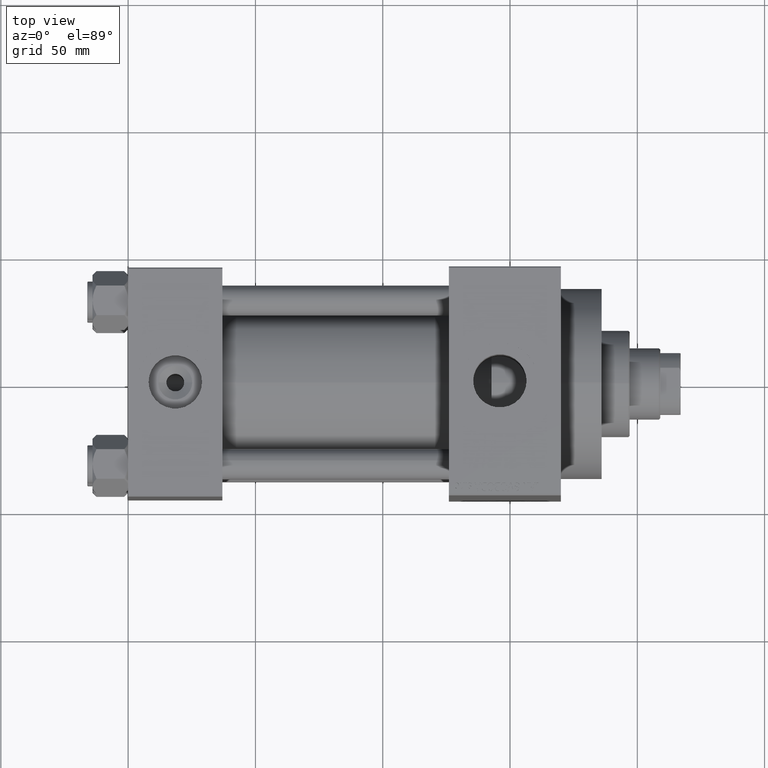
[diagram: clean part render]
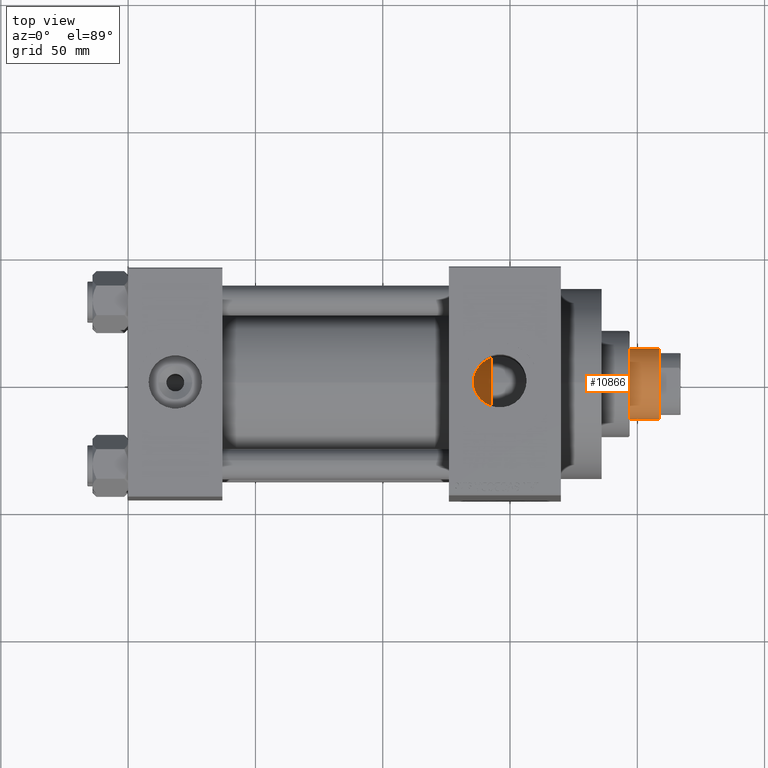
[diagram: same view with one face highlighted and labeled with its STEP entity id]
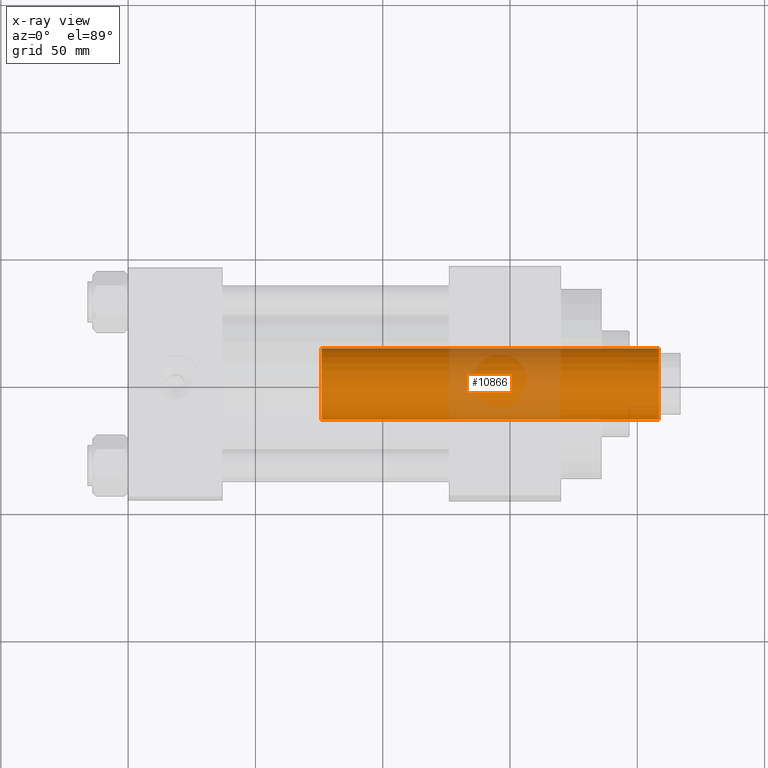
[diagram: x-ray of the same camera — body ghosted, the highlighted face saturated]
A machine part, top view. The second image highlights one B-rep face of the part: STEP entity #10866.
The next image is the same camera in x-ray: the body ghosted, the highlighted face saturated — about 25% of this face is hidden behind the body in this view.
In plain terms, the highlighted cylindrical surface (edge-blend (fillet) strip) has radius 14 mm, axis along (-1, 0, 0).
Its self-contained STEP definition (entity closure, byte-faithful):
#1105 = CARTESIAN_POINT ( 'NONE',  ( -14.00000000000000178, 0.000000000000000000, 172.0000000000000000 ) ) ;
#2178 = CARTESIAN_POINT ( 'NONE',  ( 14.00000000000000178, 1.714505518806294835E-15, 171.5000000000000284 ) ) ;
#3084 = CARTESIAN_POINT ( 'NONE',  ( -14.00000000000000178, 0.000000000000000000, 171.5000000000000284 ) ) ;
#3432 = CARTESIAN_POINT ( 'NONE',  ( 0.000000000000000000, 0.000000000000000000, 171.5000000000000284 ) ) ;
#7173 = LINE ( 'NONE', #14621, #11016 ) ;
#10866 = ADVANCED_FACE ( 'NONE', ( #24953 ), #18439, .T. ) ;
#11016 = VECTOR ( 'NONE', #36911, 1000.000000000000000 ) ;
#13331 = VERTEX_POINT ( 'NONE', #2178 ) ;
#14608 = DIRECTION ( 'NONE',  ( -1.000000000000000000, 0.000000000000000000, 0.000000000000000000 ) ) ;
#14621 = CARTESIAN_POINT ( 'NONE',  ( 14.00000000000000178, 1.714505518806294835E-15, 172.0000000000000000 ) ) ;
#14741 = VERTEX_POINT ( 'NONE', #18299 ) ;
#14892 = AXIS2_PLACEMENT_3D ( 'NONE', #21817, #39578, #14608 ) ;
#15055 = CIRCLE ( 'NONE', #42629, 14.00000000000000178 ) ;
#15466 = EDGE_CURVE ( 'NONE', #14741, #42614, #15055, .T. ) ;
#18299 = CARTESIAN_POINT ( 'NONE',  ( -14.00000000000000178, 0.000000000000000000, 39.00000000000000000 ) ) ;
#18439 = CYLINDRICAL_SURFACE ( 'NONE', #14892, 14.00000000000000178 ) ;
#19104 = DIRECTION ( 'NONE',  ( -0.000000000000000000, -0.000000000000000000, -1.000000000000000000 ) ) ;
#19232 = ORIENTED_EDGE ( 'NONE', *, *, #44851, .T. ) ;
#21817 = CARTESIAN_POINT ( 'NONE',  ( 0.000000000000000000, 0.000000000000000000, 172.0000000000000000 ) ) ;
#23608 = EDGE_CURVE ( 'NONE', #13331, #42614, #7173, .T. ) ;
#24953 = FACE_OUTER_BOUND ( 'NONE', #26852, .T. ) ;
#25805 = VERTEX_POINT ( 'NONE', #3084 ) ;
#26852 = EDGE_LOOP ( 'NONE', ( #33779, #19232, #33630, #32842 ) ) ;
#28317 = AXIS2_PLACEMENT_3D ( 'NONE', #3432, #28634, #43724 ) ;
#28343 = VECTOR ( 'NONE', #19104, 1000.000000000000000 ) ;
#28634 = DIRECTION ( 'NONE',  ( 0.000000000000000000, 0.000000000000000000, -1.000000000000000000 ) ) ;
#30576 = CIRCLE ( 'NONE', #28317, 14.00000000000000178 ) ;
#31029 = DIRECTION ( 'NONE',  ( 0.000000000000000000, 0.000000000000000000, 1.000000000000000000 ) ) ;
#31512 = DIRECTION ( 'NONE',  ( 1.000000000000000000, 0.000000000000000000, 0.000000000000000000 ) ) ;
#32842 = ORIENTED_EDGE ( 'NONE', *, *, #15466, .T. ) ;
#33630 = ORIENTED_EDGE ( 'NONE', *, *, #45571, .T. ) ;
#33779 = ORIENTED_EDGE ( 'NONE', *, *, #23608, .F. ) ;
#35891 = CARTESIAN_POINT ( 'NONE',  ( 14.00000000000000178, 1.714505518806294835E-15, 39.00000000000000000 ) ) ;
#36631 = LINE ( 'NONE', #1105, #28343 ) ;
#36911 = DIRECTION ( 'NONE',  ( -0.000000000000000000, -0.000000000000000000, -1.000000000000000000 ) ) ;
#39578 = DIRECTION ( 'NONE',  ( -0.000000000000000000, -0.000000000000000000, -1.000000000000000000 ) ) ;
#42614 = VERTEX_POINT ( 'NONE', #35891 ) ;
#42629 = AXIS2_PLACEMENT_3D ( 'NONE', #42791, #31029, #31512 ) ;
#42791 = CARTESIAN_POINT ( 'NONE',  ( 0.000000000000000000, 0.000000000000000000, 39.00000000000000000 ) ) ;
#43724 = DIRECTION ( 'NONE',  ( 1.000000000000000000, 0.000000000000000000, 0.000000000000000000 ) ) ;
#44851 = EDGE_CURVE ( 'NONE', #13331, #25805, #30576, .T. ) ;
#45571 = EDGE_CURVE ( 'NONE', #25805, #14741, #36631, .T. ) ;